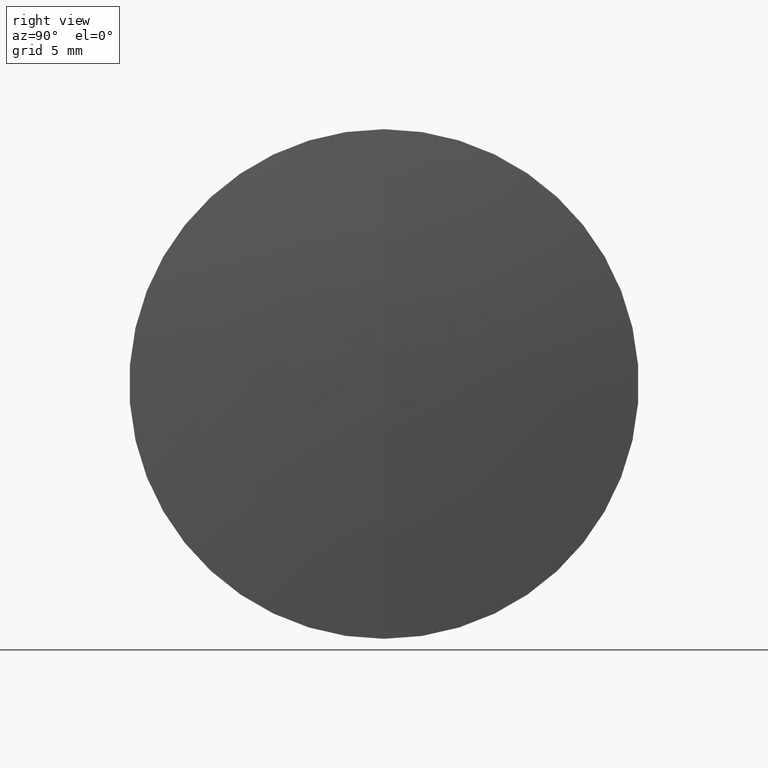
[diagram: clean part render]
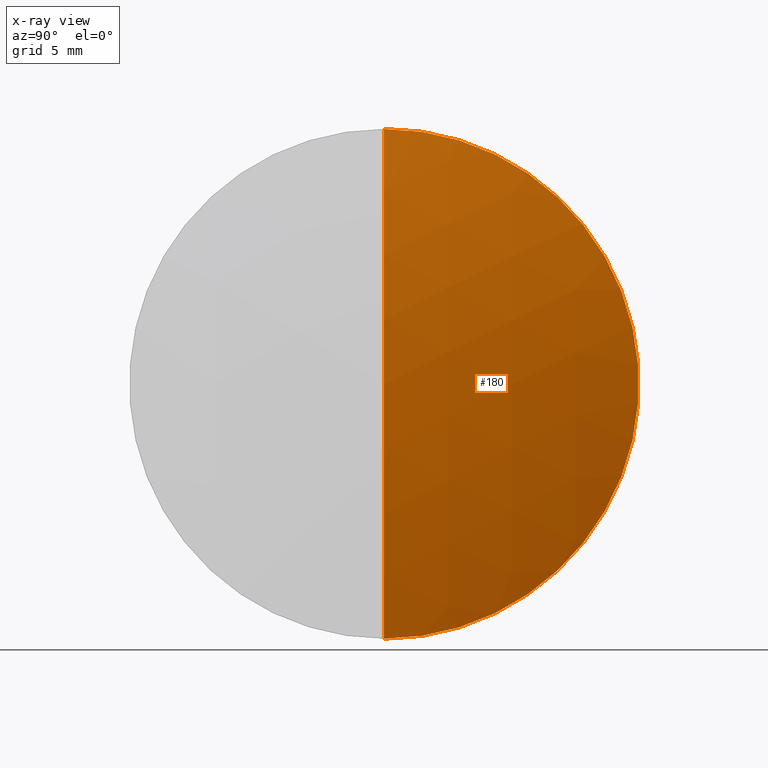
[diagram: x-ray — body ghosted, one internal face saturated and labeled with its STEP entity id]
A machine part, right view, then the same camera in x-ray: the body is ghosted and one INTERNAL B-rep face — a face not visible from any outside direction — is saturated and labeled: STEP entity #180.
In plain terms, the highlighted spherical surface has radius 45.7 mm.
Its self-contained STEP definition (entity closure, byte-faithful):
#10 = VERTEX_POINT ( 'NONE', #242 ) ;
#28 = CIRCLE ( 'NONE', #236, 45.70000000000061400 ) ;
#31 = EDGE_CURVE ( 'NONE', #260, #186, #28, .T. ) ;
#53 = AXIS2_PLACEMENT_3D ( 'NONE', #125, #122, #313 ) ;
#66 = DIRECTION ( 'NONE',  ( 0.0000000000000000000, 0.0000000000000000000, 1.000000000000000000 ) ) ;
#90 = SPHERICAL_SURFACE ( 'NONE', #223, 45.70000000000061400 ) ;
#111 = ORIENTED_EDGE ( 'NONE', *, *, #31, .T. ) ;
#115 = CARTESIAN_POINT ( 'NONE',  ( 211.0958458084194300, 0.0000000000000000000, -3.185954776904472300E-015 ) ) ;
#116 = CARTESIAN_POINT ( 'NONE',  ( 254.9957319130559200, 0.0000000000000000000, 0.0000000000000000000 ) ) ;
#120 = FACE_OUTER_BOUND ( 'NONE', #290, .T. ) ;
#122 = DIRECTION ( 'NONE',  ( 0.0000000000000000000, -1.000000000000000000, 0.0000000000000000000 ) ) ;
#125 = CARTESIAN_POINT ( 'NONE',  ( 211.0958458084194300, 0.0000000000000000000, -3.185954776904472300E-015 ) ) ;
#128 = AXIS2_PLACEMENT_3D ( 'NONE', #116, #265, #276 ) ;
#135 = DIRECTION ( 'NONE',  ( 0.0000000000000000000, 1.000000000000000000, 0.0000000000000000000 ) ) ;
#180 = ADVANCED_FACE ( 'NONE', ( #120 ), #90, .T. ) ;
#186 = VERTEX_POINT ( 'NONE', #334 ) ;
#197 = CIRCLE ( 'NONE', #128, 12.69999999999999600 ) ;
#198 = EDGE_CURVE ( 'NONE', #10, #186, #197, .T. ) ;
#218 = ORIENTED_EDGE ( 'NONE', *, *, #198, .F. ) ;
#223 = AXIS2_PLACEMENT_3D ( 'NONE', #115, #135, #66 ) ;
#224 = ORIENTED_EDGE ( 'NONE', *, *, #345, .F. ) ;
#236 = AXIS2_PLACEMENT_3D ( 'NONE', #307, #278, #312 ) ;
#242 = CARTESIAN_POINT ( 'NONE',  ( 254.9957319130559200, 0.0000000000000000000, 12.69999999999999600 ) ) ;
#260 = VERTEX_POINT ( 'NONE', #306 ) ;
#265 = DIRECTION ( 'NONE',  ( -1.000000000000000000, -0.0000000000000000000, -0.0000000000000000000 ) ) ;
#276 = DIRECTION ( 'NONE',  ( 0.0000000000000000000, 0.0000000000000000000, 1.000000000000000000 ) ) ;
#278 = DIRECTION ( 'NONE',  ( -0.0000000000000000000, 1.000000000000000000, 1.224646799147353200E-016 ) ) ;
#290 = EDGE_LOOP ( 'NONE', ( #224, #111, #218 ) ) ;
#306 = CARTESIAN_POINT ( 'NONE',  ( 256.7958458084200400, 0.0000000000000000000, -3.876368408527329000E-016 ) ) ;
#307 = CARTESIAN_POINT ( 'NONE',  ( 211.0958458084194300, 0.0000000000000000000, -3.185954776904472300E-015 ) ) ;
#312 = DIRECTION ( 'NONE',  ( 0.0000000000000000000, -1.224646799147353200E-016, 1.000000000000000000 ) ) ;
#313 = DIRECTION ( 'NONE',  ( 0.0000000000000000000, 0.0000000000000000000, -1.000000000000000000 ) ) ;
#334 = CARTESIAN_POINT ( 'NONE',  ( 254.9957319130559200, 1.555301434917138000E-015, -12.69999999999999600 ) ) ;
#341 = CIRCLE ( 'NONE', #53, 45.70000000000061400 ) ;
#345 = EDGE_CURVE ( 'NONE', #260, #10, #341, .T. ) ;